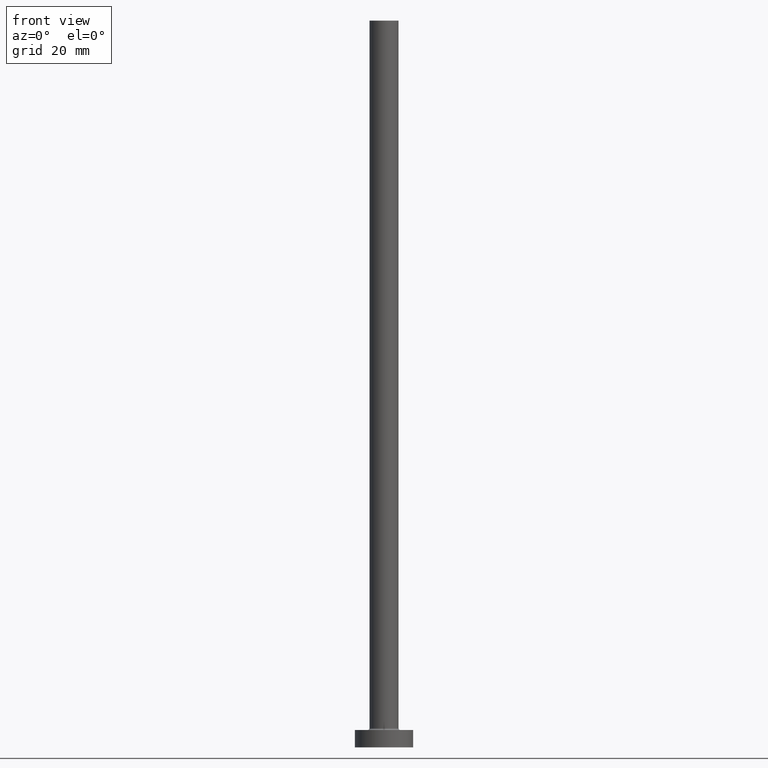
[diagram: clean part render]
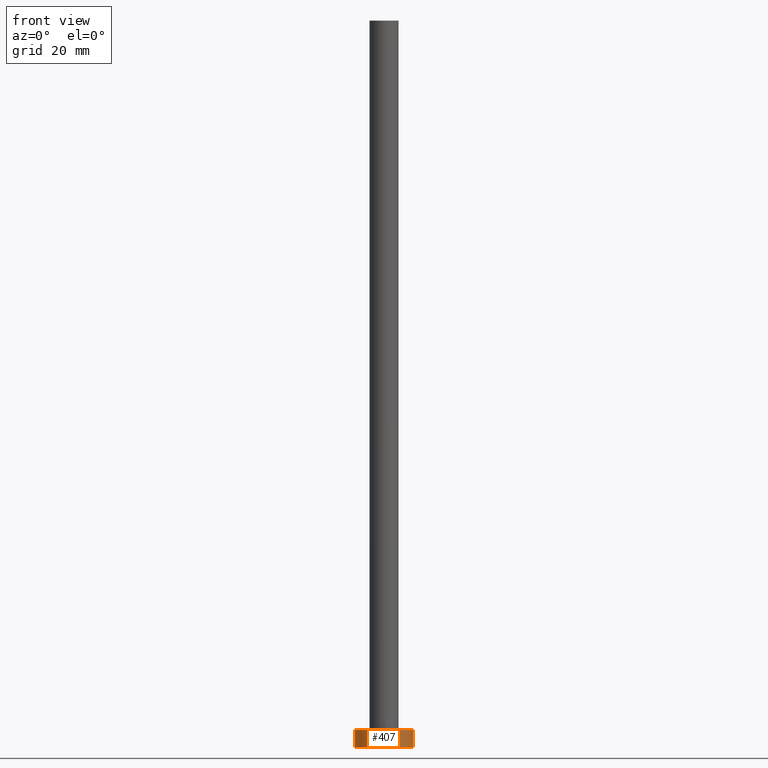
[diagram: same view with one face highlighted and labeled with its STEP entity id]
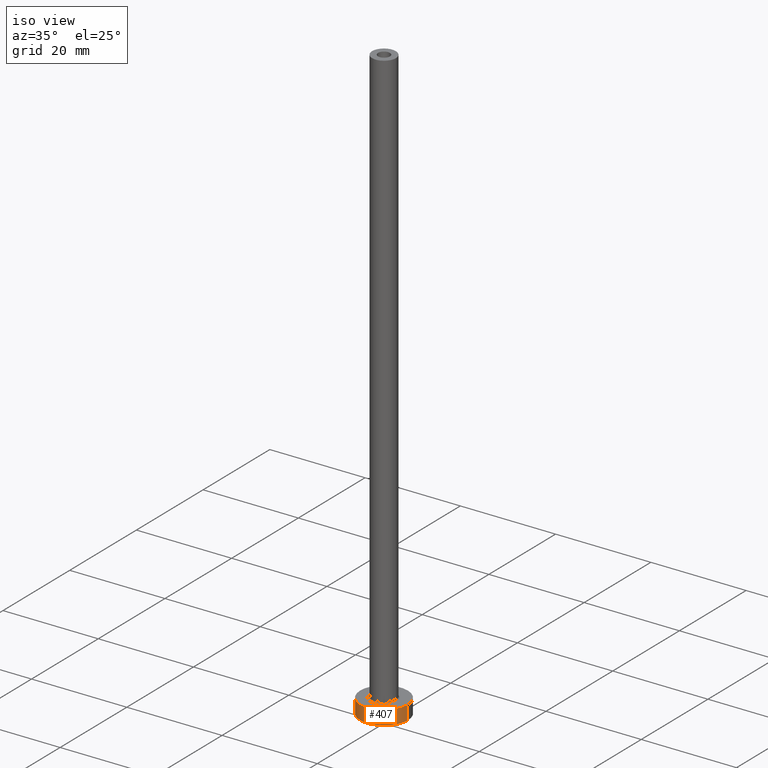
[diagram: same view with one face highlighted and labeled with its STEP entity id]
A machine part, front view. The second image highlights one B-rep face of the part: STEP entity #407.
A second angle (iso view) of the same face is appended — the face is thin or edge-on in the first view.
In plain terms, the highlighted cylindrical surface (edge-blend (fillet) strip) has radius 5 mm, axis along (-0, -0, -1).
Its self-contained STEP definition (entity closure, byte-faithful):
#3 = DIRECTION ( 'NONE',  ( -0.000000000000000000, -0.000000000000000000, -1.000000000000000000 ) ) ;
#20 = ORIENTED_EDGE ( 'NONE', *, *, #334, .T. ) ;
#26 = VECTOR ( 'NONE', #3, 1000.000000000000000 ) ;
#35 = EDGE_LOOP ( 'NONE', ( #248, #209, #20, #83 ) ) ;
#57 = VERTEX_POINT ( 'NONE', #119 ) ;
#64 = DIRECTION ( 'NONE',  ( 1.000000000000000000, 0.000000000000000000, 0.000000000000000000 ) ) ;
#68 = CARTESIAN_POINT ( 'NONE',  ( -5.000000000000000000, 0.000000000000000000, 3.000000000000000000 ) ) ;
#72 = VECTOR ( 'NONE', #460, 1000.000000000000000 ) ;
#73 = CARTESIAN_POINT ( 'NONE',  ( -5.000000000000000000, 0.000000000000000000, 3.000000000000000000 ) ) ;
#77 = EDGE_CURVE ( 'NONE', #250, #57, #386, .T. ) ;
#81 = FACE_OUTER_BOUND ( 'NONE', #35, .T. ) ;
#83 = ORIENTED_EDGE ( 'NONE', *, *, #289, .T. ) ;
#96 = DIRECTION ( 'NONE',  ( 0.000000000000000000, 0.000000000000000000, 1.000000000000000000 ) ) ;
#111 = LINE ( 'NONE', #73, #26 ) ;
#119 = CARTESIAN_POINT ( 'NONE',  ( 5.000000000000000000, 6.123233995736766282E-16, 3.000000000000000000 ) ) ;
#136 = CARTESIAN_POINT ( 'NONE',  ( 5.000000000000000000, 6.123233995736766282E-16, 3.000000000000000000 ) ) ;
#138 = CARTESIAN_POINT ( 'NONE',  ( 0.000000000000000000, 0.000000000000000000, 0.000000000000000000 ) ) ;
#170 = CARTESIAN_POINT ( 'NONE',  ( 0.000000000000000000, 0.000000000000000000, 3.000000000000000000 ) ) ;
#175 = DIRECTION ( 'NONE',  ( 1.000000000000000000, 0.000000000000000000, 0.000000000000000000 ) ) ;
#180 = DIRECTION ( 'NONE',  ( -1.000000000000000000, 0.000000000000000000, 0.000000000000000000 ) ) ;
#203 = AXIS2_PLACEMENT_3D ( 'NONE', #264, #96, #64 ) ;
#209 = ORIENTED_EDGE ( 'NONE', *, *, #77, .F. ) ;
#221 = VERTEX_POINT ( 'NONE', #236 ) ;
#236 = CARTESIAN_POINT ( 'NONE',  ( -5.000000000000000000, 0.000000000000000000, 0.000000000000000000 ) ) ;
#246 = VERTEX_POINT ( 'NONE', #385 ) ;
#248 = ORIENTED_EDGE ( 'NONE', *, *, #306, .F. ) ;
#250 = VERTEX_POINT ( 'NONE', #68 ) ;
#264 = CARTESIAN_POINT ( 'NONE',  ( 0.000000000000000000, 0.000000000000000000, 3.000000000000000000 ) ) ;
#269 = AXIS2_PLACEMENT_3D ( 'NONE', #138, #288, #175 ) ;
#288 = DIRECTION ( 'NONE',  ( 0.000000000000000000, 0.000000000000000000, 1.000000000000000000 ) ) ;
#289 = EDGE_CURVE ( 'NONE', #221, #246, #415, .T. ) ;
#304 = AXIS2_PLACEMENT_3D ( 'NONE', #170, #327, #180 ) ;
#306 = EDGE_CURVE ( 'NONE', #57, #246, #321, .T. ) ;
#321 = LINE ( 'NONE', #136, #72 ) ;
#327 = DIRECTION ( 'NONE',  ( -0.000000000000000000, -0.000000000000000000, -1.000000000000000000 ) ) ;
#334 = EDGE_CURVE ( 'NONE', #250, #221, #111, .T. ) ;
#359 = CYLINDRICAL_SURFACE ( 'NONE', #304, 5.000000000000000000 ) ;
#385 = CARTESIAN_POINT ( 'NONE',  ( 5.000000000000000000, 6.123233995736766282E-16, 0.000000000000000000 ) ) ;
#386 = CIRCLE ( 'NONE', #203, 5.000000000000000000 ) ;
#407 = ADVANCED_FACE ( 'NONE', ( #81 ), #359, .T. ) ;
#415 = CIRCLE ( 'NONE', #269, 5.000000000000000000 ) ;
#460 = DIRECTION ( 'NONE',  ( -0.000000000000000000, -0.000000000000000000, -1.000000000000000000 ) ) ;